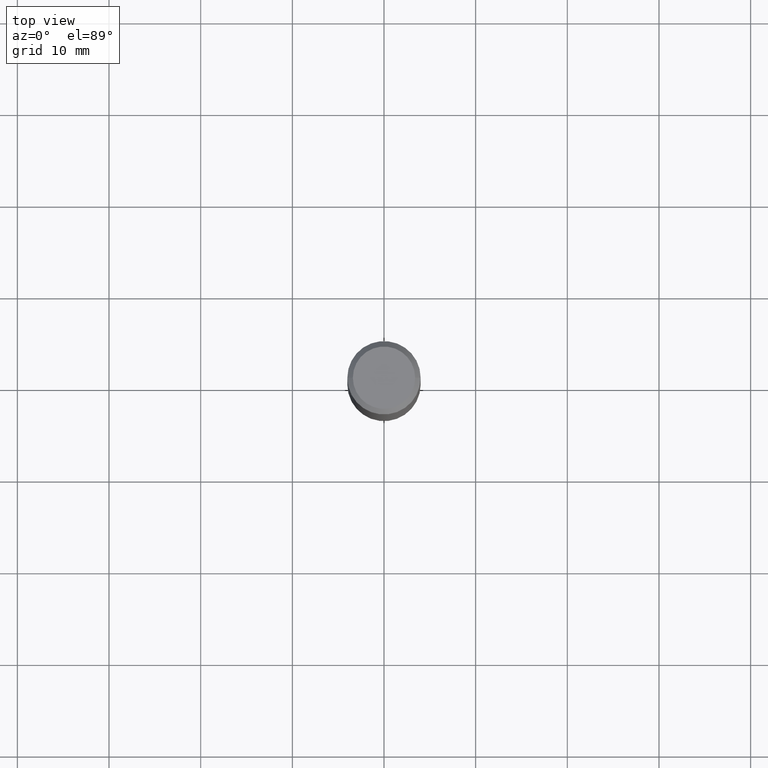
[diagram: clean part render]
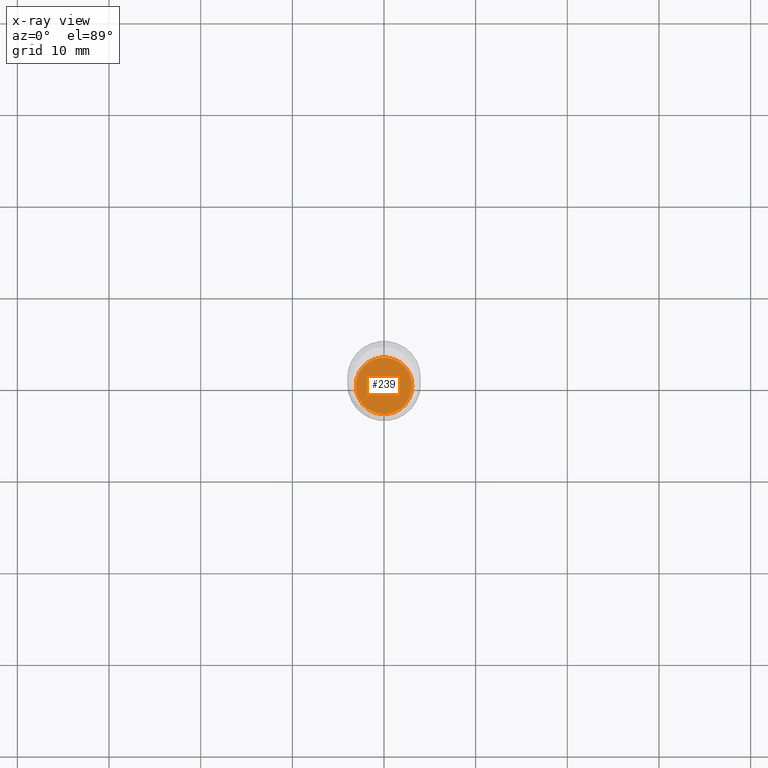
[diagram: x-ray — body ghosted, one internal face saturated and labeled with its STEP entity id]
A machine part, top view, then the same camera in x-ray: the body is ghosted and one INTERNAL B-rep face — a face not visible from any outside direction — is saturated and labeled: STEP entity #239.
In plain terms, the highlighted planar face has unit normal (-0, 0, 1).
Its self-contained STEP definition (entity closure, byte-faithful):
#76 = DIRECTION ( 'NONE',  ( -2.438088387897960049E-29, 3.491481338843145188E-15, 1.000000000000000000 ) ) ;
#79 = FACE_OUTER_BOUND ( 'NONE', #363, .T. ) ;
#93 = CARTESIAN_POINT ( 'NONE',  ( 0.1215500000000000053, -7.886558048178895333E-15, -2.015699999999999825 ) ) ;
#105 = ORIENTED_EDGE ( 'NONE', *, *, #141, .F. ) ;
#108 = VERTEX_POINT ( 'NONE', #373 ) ;
#141 = EDGE_CURVE ( 'NONE', #174, #108, #478, .T. ) ;
#169 = DIRECTION ( 'NONE',  ( -2.445468806185136597E-29, 3.491481338843145583E-15, 1.000000000000000000 ) ) ;
#174 = VERTEX_POINT ( 'NONE', #93 ) ;
#191 = EDGE_CURVE ( 'NONE', #108, #174, #318, .T. ) ;
#217 = ORIENTED_EDGE ( 'NONE', *, *, #191, .F. ) ;
#231 = DIRECTION ( 'NONE',  ( 1.000000000000000000, -6.982962677686266711E-15, 0.000000000000000000 ) ) ;
#239 = ADVANCED_FACE ( 'NONE', ( #79 ), #240, .F. ) ;
#240 = PLANE ( 'NONE',  #393 ) ;
#268 = DIRECTION ( 'NONE',  ( -2.445468806185136597E-29, 3.491481338843145583E-15, 1.000000000000000000 ) ) ;
#315 = CARTESIAN_POINT ( 'NONE',  ( 4.929331472627379761E-29, -7.037778934706128744E-15, -2.015699999999999825 ) ) ;
#318 = CIRCLE ( 'NONE', #362, 0.1215500000000000053 ) ;
#351 = CARTESIAN_POINT ( 'NONE',  ( 4.929331472627379761E-29, -7.037778934706128744E-15, -2.015699999999999825 ) ) ;
#362 = AXIS2_PLACEMENT_3D ( 'NONE', #364, #169, #409 ) ;
#363 = EDGE_LOOP ( 'NONE', ( #105, #217 ) ) ;
#364 = CARTESIAN_POINT ( 'NONE',  ( 4.929331472627379761E-29, -7.037778934706128744E-15, -2.015699999999999825 ) ) ;
#373 = CARTESIAN_POINT ( 'NONE',  ( -0.1215500000000000053, -6.171465012215616223E-15, -2.015699999999999825 ) ) ;
#385 = DIRECTION ( 'NONE',  ( 1.000000000000000000, -6.982962677686265922E-15, 4.876176775795935793E-29 ) ) ;
#393 = AXIS2_PLACEMENT_3D ( 'NONE', #315, #76, #385 ) ;
#409 = DIRECTION ( 'NONE',  ( 1.000000000000000000, -6.982962677686266711E-15, 0.000000000000000000 ) ) ;
#478 = CIRCLE ( 'NONE', #487, 0.1215500000000000053 ) ;
#487 = AXIS2_PLACEMENT_3D ( 'NONE', #351, #268, #231 ) ;